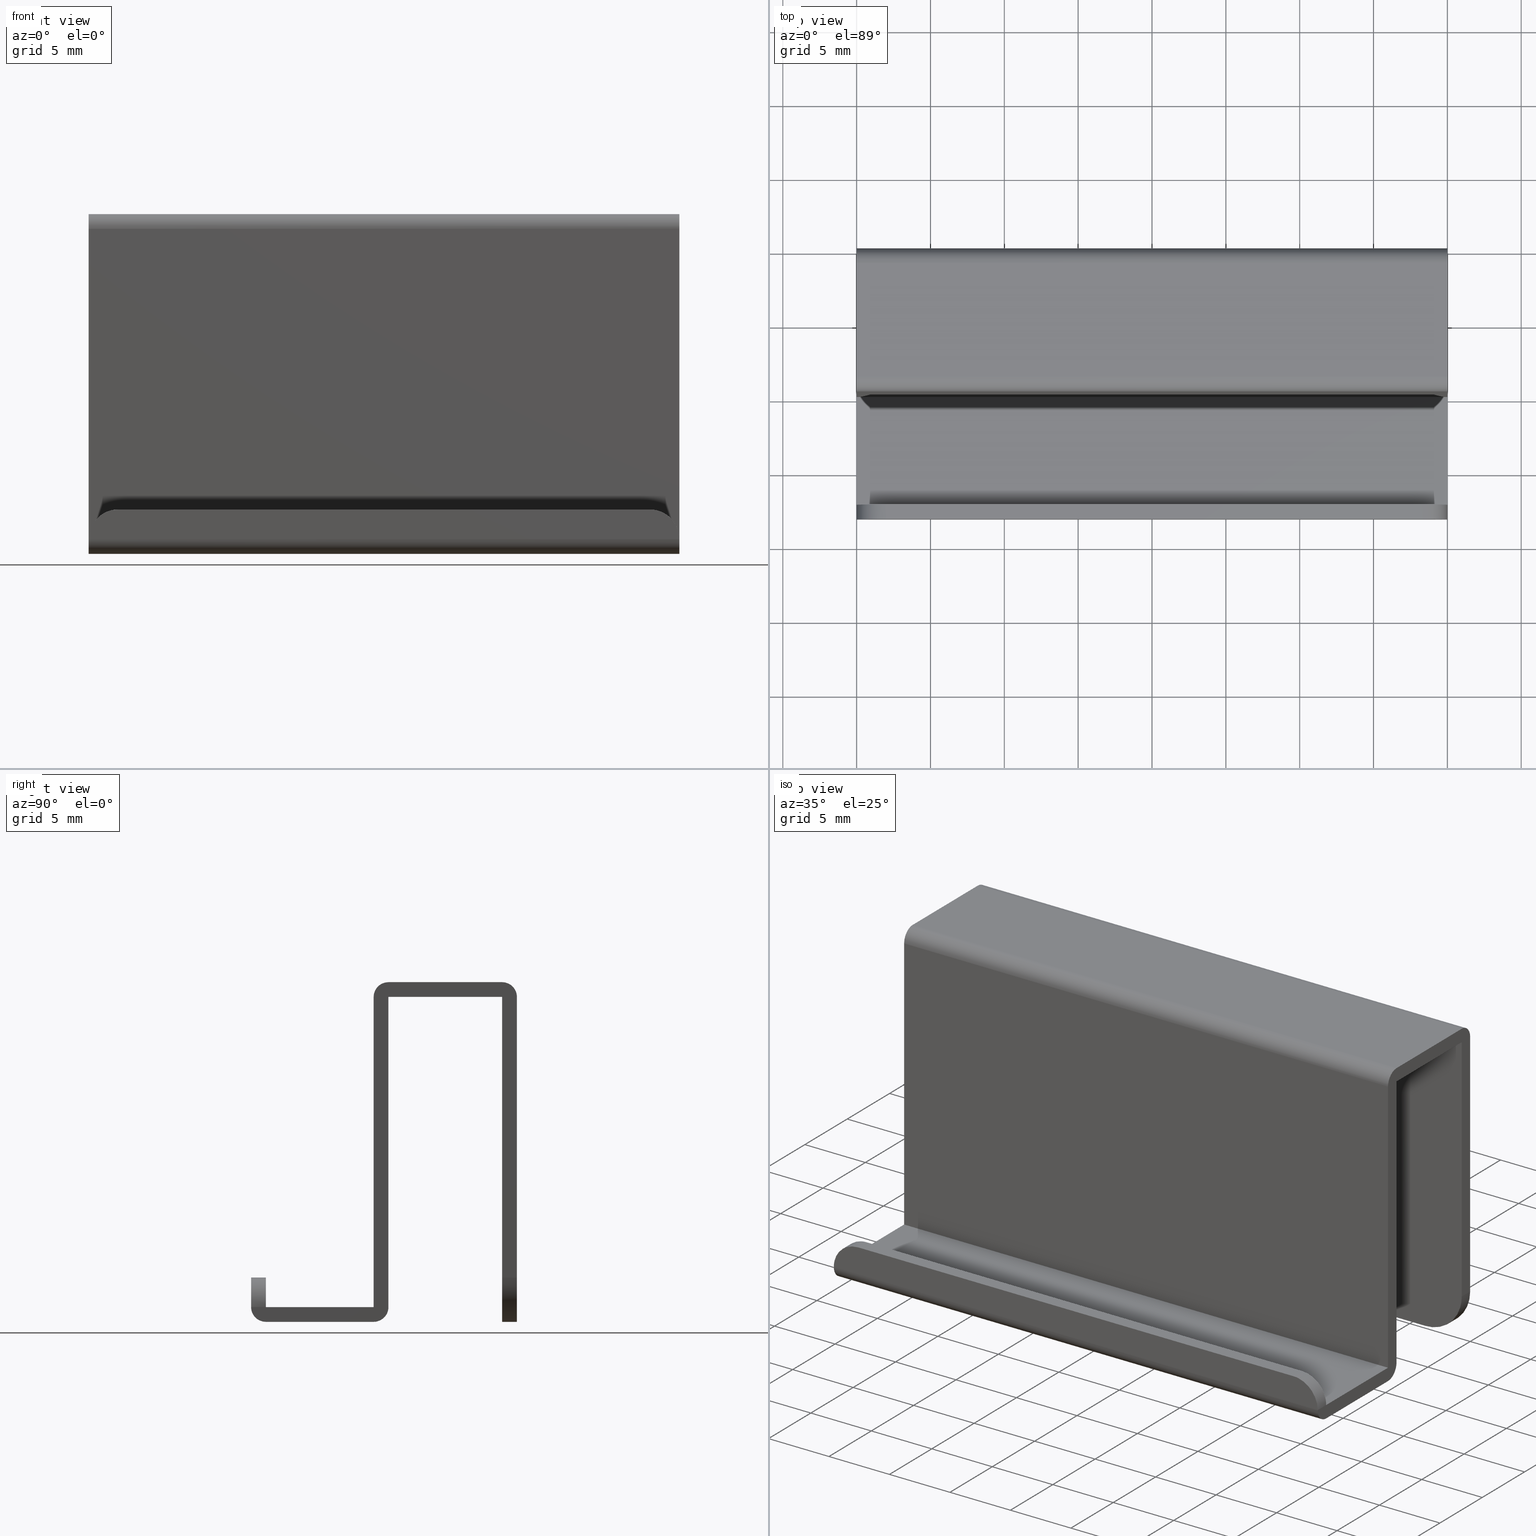
[diagram: canonical four-view strip — front | top / right | iso, engineering-drawing reading convention]
A machine part, canonical four-view strip (front | top / right | iso — engineering-drawing reading convention). The complete STEP part file that produces these views, byte-faithful:
ISO-10303-21;
HEADER;
/****************************************************************
 * Generated by software with PDE/Lib inside                    *
 * PDElib Version 4.4.1-0003, patched  Thursday August 19 11:58 *
 * International Technegroup Inc. (www.iti-oh.com)              *
 ****************************************************************/
FILE_DESCRIPTION((''),'2;1');
FILE_NAME('','2005-07-15T14:08:03',(''),(''),'','CADfix','');
FILE_SCHEMA(('AUTOMOTIVE_DESIGN'));
ENDSEC;
DATA;
#5=APPLICATION_CONTEXT('automotive design');
#6=APPLICATION_PROTOCOL_DEFINITION('Draft International Standard','automotive_design',1998,#5);
#7=PRODUCT_CONTEXT('None',#5,'mechanical');
#8=PRODUCT('keeper','','None',(#7));
#9=PRODUCT_RELATED_PRODUCT_CATEGORY('part','description',(#8));
#10=PRODUCT_DEFINITION_FORMATION('None','None',#8);
#11=PRODUCT_DEFINITION_CONTEXT('part definition',#5,'design');
#12=PRODUCT_DEFINITION('None','None',#10,#11);
#18=(NAMED_UNIT(*)PLANE_ANGLE_UNIT()SI_UNIT($,.RADIAN.));
#19=DIMENSIONAL_EXPONENTS(0.0,0.0,0.0,0.0,0.0,0.0,0.0);
#20=PLANE_ANGLE_MEASURE_WITH_UNIT(PLANE_ANGLE_MEASURE(0.017453292500000),#18);
#24=(CONVERSION_BASED_UNIT('DEGREE',#20)NAMED_UNIT(#19)PLANE_ANGLE_UNIT());
#28=(NAMED_UNIT(*)SI_UNIT($,.STERADIAN.)SOLID_ANGLE_UNIT());
#32=(LENGTH_UNIT()NAMED_UNIT(*)SI_UNIT(.MILLI.,.METRE.));
#34=UNCERTAINTY_MEASURE_WITH_UNIT(LENGTH_MEASURE(0.001000000000000),#32,'DISTANCE_ACCURACY_VALUE','');
#36=(GEOMETRIC_REPRESENTATION_CONTEXT(3)GLOBAL_UNCERTAINTY_ASSIGNED_CONTEXT((#34))GLOBAL_UNIT_ASSIGNED_CONTEXT((#24,#28,#32))REPRESENTATION_CONTEXT('None','None'));
#37=AXIS2_PLACEMENT_3D('',#38,#39,#40);
#38=CARTESIAN_POINT('',(0.0,0.0,0.0));
#39=DIRECTION('',(0.0,0.0,1.0));
#40=DIRECTION('',(1.0,0.0,0.0));
#41=ADVANCED_BREP_SHAPE_REPRESENTATION('',(#37,#829),#36);
#42=PRODUCT_DEFINITION_SHAPE('','',#12);
#43=SHAPE_DEFINITION_REPRESENTATION(#42,#41);
#44=CARTESIAN_POINT('',(17.947646103384251,-16.974999999999749,2.999314649951114));
#45=CARTESIAN_POINT('',(17.947646103384251,-18.025624999999760,2.999314649951114));
#46=CARTESIAN_POINT('',(20.129515177188242,-16.974999999999756,3.056448902391984));
#47=CARTESIAN_POINT('',(20.129515177188242,-18.025624999999753,3.056448902391984));
#48=CARTESIAN_POINT('',(19.996269596843739,-16.974999999999749,0.877902920930291));
#49=CARTESIAN_POINT('',(19.996269596843739,-18.025624999999760,0.877902920930291));
#57=(BOUNDED_SURFACE()B_SPLINE_SURFACE(1,2,((#44,#46,#48),(#45,#47,#49)),.UNSPECIFIED.,.F.,.F.,.U.)B_SPLINE_SURFACE_WITH_KNOTS((2,2),(3,3),(0.0,1.0),(0.0,3.520084247134669),.UNSPECIFIED.)GEOMETRIC_REPRESENTATION_ITEM()RATIONAL_B_SPLINE_SURFACE(((1.0,0.675590207615660,1.0),(1.0,0.675590207615660,1.0)))REPRESENTATION_ITEM('')SURFACE());
#58=CARTESIAN_POINT('',(20.0,-17.999999999999751,1.0));
#59=VERTEX_POINT('',#58);
#60=CARTESIAN_POINT('',(18.0,-17.999999999999751,3.0));
#61=VERTEX_POINT('',#60);
#62=CARTESIAN_POINT('',(20.0,-17.999999999999751,1.0));
#63=CARTESIAN_POINT('',(19.999999999999996,-17.999999999999751,3.0));
#64=CARTESIAN_POINT('',(18.0,-17.999999999999751,3.0));
#72=(BOUNDED_CURVE()B_SPLINE_CURVE(2,(#62,#63,#64),.UNSPECIFIED.,.F.,.U.)CURVE()GEOMETRIC_REPRESENTATION_ITEM()QUASI_UNIFORM_CURVE()RATIONAL_B_SPLINE_CURVE((1.0,0.707106781186548,1.0))REPRESENTATION_ITEM(''));
#73=EDGE_CURVE('',#59,#61,#72,.T.);
#74=ORIENTED_EDGE('',*,*,#73,.F.);
#75=CARTESIAN_POINT('',(20.0,-16.999999999999751,1.0));
#76=VERTEX_POINT('',#75);
#77=CARTESIAN_POINT('',(20.0,-16.999999999999751,1.0));
#78=CARTESIAN_POINT('',(20.0,-17.999999999999751,1.0));
#79=QUASI_UNIFORM_CURVE('',1,(#77,#78),.UNSPECIFIED.,.F.,.U.);
#80=EDGE_CURVE('',#76,#59,#79,.T.);
#81=ORIENTED_EDGE('',*,*,#80,.F.);
#82=CARTESIAN_POINT('',(18.0,-16.999999999999751,3.0));
#83=VERTEX_POINT('',#82);
#84=CARTESIAN_POINT('',(18.0,-16.999999999999751,3.0));
#85=CARTESIAN_POINT('',(19.999999999999996,-16.999999999999748,3.0));
#86=CARTESIAN_POINT('',(20.0,-16.999999999999751,1.0));
#94=(BOUNDED_CURVE()B_SPLINE_CURVE(2,(#84,#85,#86),.UNSPECIFIED.,.F.,.U.)CURVE()GEOMETRIC_REPRESENTATION_ITEM()QUASI_UNIFORM_CURVE()RATIONAL_B_SPLINE_CURVE((1.0,0.707106781186548,1.0))REPRESENTATION_ITEM(''));
#95=EDGE_CURVE('',#83,#76,#94,.T.);
#96=ORIENTED_EDGE('',*,*,#95,.F.);
#97=CARTESIAN_POINT('',(18.0,-17.999999999999751,3.0));
#98=CARTESIAN_POINT('',(18.0,-16.999999999999751,3.0));
#99=QUASI_UNIFORM_CURVE('',1,(#97,#98),.UNSPECIFIED.,.F.,.U.);
#100=EDGE_CURVE('',#61,#83,#99,.T.);
#101=ORIENTED_EDGE('',*,*,#100,.F.);
#102=EDGE_LOOP('',(#74,#81,#96,#101));
#103=FACE_OUTER_BOUND('',#102,.T.);
#104=ADVANCED_FACE('',(#103),#57,.T.);
#105=CARTESIAN_POINT('',(-17.947646103384251,-18.024999999999750,2.999314649951114));
#106=CARTESIAN_POINT('',(-17.947646103384251,-16.974374999999750,2.999314649951114));
#107=CARTESIAN_POINT('',(-20.129515177188242,-18.024999999999753,3.056448902391984));
#108=CARTESIAN_POINT('',(-20.129515177188242,-16.974374999999757,3.056448902391984));
#109=CARTESIAN_POINT('',(-19.996269596843739,-18.024999999999750,0.877902920930291));
#110=CARTESIAN_POINT('',(-19.996269596843739,-16.974374999999750,0.877902920930291));
#118=(BOUNDED_SURFACE()B_SPLINE_SURFACE(1,2,((#105,#107,#109),(#106,#108,#110)),.UNSPECIFIED.,.F.,.F.,.U.)B_SPLINE_SURFACE_WITH_KNOTS((2,2),(3,3),(0.0,1.0),(0.0,3.520084247134669),.UNSPECIFIED.)GEOMETRIC_REPRESENTATION_ITEM()RATIONAL_B_SPLINE_SURFACE(((1.0,0.675590207615660,1.0),(1.0,0.675590207615660,1.0)))REPRESENTATION_ITEM('')SURFACE());
#119=CARTESIAN_POINT('',(-18.0,-17.999999999999751,3.0));
#120=VERTEX_POINT('',#119);
#121=CARTESIAN_POINT('',(-20.0,-17.999999999999751,1.0));
#122=VERTEX_POINT('',#121);
#123=CARTESIAN_POINT('',(-18.0,-17.999999999999751,3.0));
#124=CARTESIAN_POINT('',(-19.999999999999996,-17.999999999999751,3.0));
#125=CARTESIAN_POINT('',(-20.0,-17.999999999999751,1.0));
#133=(BOUNDED_CURVE()B_SPLINE_CURVE(2,(#123,#124,#125),.UNSPECIFIED.,.F.,.U.)CURVE()GEOMETRIC_REPRESENTATION_ITEM()QUASI_UNIFORM_CURVE()RATIONAL_B_SPLINE_CURVE((1.0,0.707106781186548,1.0))REPRESENTATION_ITEM(''));
#134=EDGE_CURVE('',#120,#122,#133,.T.);
#135=ORIENTED_EDGE('',*,*,#134,.F.);
#136=CARTESIAN_POINT('',(-18.0,-16.999999999999751,3.0));
#137=VERTEX_POINT('',#136);
#138=CARTESIAN_POINT('',(-18.0,-16.999999999999751,3.0));
#139=CARTESIAN_POINT('',(-18.0,-17.999999999999751,3.0));
#140=QUASI_UNIFORM_CURVE('',1,(#138,#139),.UNSPECIFIED.,.F.,.U.);
#141=EDGE_CURVE('',#137,#120,#140,.T.);
#142=ORIENTED_EDGE('',*,*,#141,.F.);
#143=CARTESIAN_POINT('',(-20.0,-16.999999999999751,1.0));
#144=VERTEX_POINT('',#143);
#145=CARTESIAN_POINT('',(-20.0,-16.999999999999751,1.0));
#146=CARTESIAN_POINT('',(-19.999999999999996,-16.999999999999748,3.0));
#147=CARTESIAN_POINT('',(-18.0,-16.999999999999751,3.0));
#155=(BOUNDED_CURVE()B_SPLINE_CURVE(2,(#145,#146,#147),.UNSPECIFIED.,.F.,.U.)CURVE()GEOMETRIC_REPRESENTATION_ITEM()QUASI_UNIFORM_CURVE()RATIONAL_B_SPLINE_CURVE((1.0,0.707106781186548,1.0))REPRESENTATION_ITEM(''));
#156=EDGE_CURVE('',#144,#137,#155,.T.);
#157=ORIENTED_EDGE('',*,*,#156,.F.);
#158=CARTESIAN_POINT('',(-20.0,-17.999999999999751,1.0));
#159=CARTESIAN_POINT('',(-20.0,-16.999999999999751,1.0));
#160=QUASI_UNIFORM_CURVE('',1,(#158,#159),.UNSPECIFIED.,.F.,.U.);
#161=EDGE_CURVE('',#122,#144,#160,.T.);
#162=ORIENTED_EDGE('',*,*,#161,.F.);
#163=EDGE_LOOP('',(#135,#142,#157,#162));
#164=FACE_OUTER_BOUND('',#163,.T.);
#165=ADVANCED_FACE('',(#164),#118,.T.);
#166=CARTESIAN_POINT('',(21.0,-0.000342675024443,21.973823051692129));
#167=CARTESIAN_POINT('',(-21.024999999999999,-0.000342675024443,21.973823051692129));
#168=CARTESIAN_POINT('',(21.000000000000007,0.028492260166263,23.074984800554716));
#169=CARTESIAN_POINT('',(-21.025000000000009,0.028492260166263,23.074984800554716));
#170=CARTESIAN_POINT('',(21.000000000000004,-1.070320075625979,22.997524479380804));
#171=CARTESIAN_POINT('',(-21.024999999999999,-1.070320075625979,22.997524479380804));
#179=(BOUNDED_SURFACE()B_SPLINE_SURFACE(1,2,((#166,#168,#170),(#167,#169,#171)),.UNSPECIFIED.,.F.,.F.,.U.)B_SPLINE_SURFACE_WITH_KNOTS((2,2),(3,3),(0.0,42.025000000000013),(0.0,0.994518632334191),.UNSPECIFIED.)GEOMETRIC_REPRESENTATION_ITEM()RATIONAL_B_SPLINE_SURFACE(((1.0,0.670944223154768,0.996392648609106),(1.0,0.670944223154768,0.996392648609106)))REPRESENTATION_ITEM('')SURFACE());
#180=CARTESIAN_POINT('',(20.0,0.0,22.0));
#181=VERTEX_POINT('',#180);
#182=CARTESIAN_POINT('',(20.0,-1.0,23.0));
#183=VERTEX_POINT('',#182);
#184=CARTESIAN_POINT('',(20.0,0.0,22.0));
#185=CARTESIAN_POINT('',(19.999999999999996,0.0,22.999999999999993));
#186=CARTESIAN_POINT('',(20.0,-1.0,23.0));
#194=(BOUNDED_CURVE()B_SPLINE_CURVE(2,(#184,#185,#186),.UNSPECIFIED.,.F.,.U.)CURVE()GEOMETRIC_REPRESENTATION_ITEM()QUASI_UNIFORM_CURVE()RATIONAL_B_SPLINE_CURVE((1.0,0.707106781186548,1.0))REPRESENTATION_ITEM(''));
#195=EDGE_CURVE('',#181,#183,#194,.T.);
#196=ORIENTED_EDGE('',*,*,#195,.F.);
#197=CARTESIAN_POINT('',(-20.0,0.0,22.0));
#198=VERTEX_POINT('',#197);
#199=CARTESIAN_POINT('',(-20.0,0.0,22.0));
#200=CARTESIAN_POINT('',(20.0,0.0,22.0));
#201=QUASI_UNIFORM_CURVE('',1,(#199,#200),.UNSPECIFIED.,.F.,.U.);
#202=EDGE_CURVE('',#198,#181,#201,.T.);
#203=ORIENTED_EDGE('',*,*,#202,.F.);
#204=CARTESIAN_POINT('',(-20.0,-1.0,23.0));
#205=VERTEX_POINT('',#204);
#206=CARTESIAN_POINT('',(-20.0,-1.0,23.0));
#207=CARTESIAN_POINT('',(-19.999999999999996,0.0,22.999999999999993));
#208=CARTESIAN_POINT('',(-20.0,0.0,22.0));
#216=(BOUNDED_CURVE()B_SPLINE_CURVE(2,(#206,#207,#208),.UNSPECIFIED.,.F.,.U.)CURVE()GEOMETRIC_REPRESENTATION_ITEM()QUASI_UNIFORM_CURVE()RATIONAL_B_SPLINE_CURVE((1.0,0.707106781186548,1.0))REPRESENTATION_ITEM(''));
#217=EDGE_CURVE('',#205,#198,#216,.T.);
#218=ORIENTED_EDGE('',*,*,#217,.F.);
#219=CARTESIAN_POINT('',(20.0,-1.0,23.0));
#220=CARTESIAN_POINT('',(-20.0,-1.0,23.0));
#221=QUASI_UNIFORM_CURVE('',1,(#219,#220),.UNSPECIFIED.,.F.,.U.);
#222=EDGE_CURVE('',#183,#205,#221,.T.);
#223=ORIENTED_EDGE('',*,*,#222,.F.);
#224=EDGE_LOOP('',(#196,#203,#218,#223));
#225=FACE_OUTER_BOUND('',#224,.T.);
#226=ADVANCED_FACE('',(#225),#179,.T.);
#227=CARTESIAN_POINT('',(21.0,-8.673835051691915,22.999657324975558));
#228=CARTESIAN_POINT('',(-21.024999999999999,-8.673835051691915,22.999657324975558));
#229=CARTESIAN_POINT('',(21.000000000000004,-9.774996789346199,23.028492259872760));
#230=CARTESIAN_POINT('',(-21.025000000000002,-9.774996789346199,23.028492259872760));
#231=CARTESIAN_POINT('',(21.000000000000007,-9.697536480093030,21.929679934480149));
#232=CARTESIAN_POINT('',(-21.025000000000006,-9.697536480093030,21.929679934480149));
#240=(BOUNDED_SURFACE()B_SPLINE_SURFACE(1,2,((#227,#229,#231),(#228,#230,#232)),.UNSPECIFIED.,.F.,.F.,.U.)B_SPLINE_SURFACE_WITH_KNOTS((2,2),(3,3),(0.0,42.025000000000013),(0.0,0.994518625542335),.UNSPECIFIED.)GEOMETRIC_REPRESENTATION_ITEM()RATIONAL_B_SPLINE_SURFACE(((1.0,0.670944225401986,0.996392644163943),(1.0,0.670944225401986,0.996392644163943)))REPRESENTATION_ITEM('')SURFACE());
#241=CARTESIAN_POINT('',(20.0,-8.700011999999788,23.0));
#242=VERTEX_POINT('',#241);
#243=CARTESIAN_POINT('',(20.0,-9.700011999999790,22.0));
#244=VERTEX_POINT('',#243);
#245=CARTESIAN_POINT('',(20.0,-8.700011999999788,23.0));
#246=CARTESIAN_POINT('',(19.999999999999996,-9.700011999999790,22.999999999999993));
#247=CARTESIAN_POINT('',(20.0,-9.700011999999790,22.0));
#255=(BOUNDED_CURVE()B_SPLINE_CURVE(2,(#245,#246,#247),.UNSPECIFIED.,.F.,.U.)CURVE()GEOMETRIC_REPRESENTATION_ITEM()QUASI_UNIFORM_CURVE()RATIONAL_B_SPLINE_CURVE((1.0,0.707106781186548,1.0))REPRESENTATION_ITEM(''));
#256=EDGE_CURVE('',#242,#244,#255,.T.);
#257=ORIENTED_EDGE('',*,*,#256,.F.);
#258=CARTESIAN_POINT('',(-20.0,-8.700011999999788,23.0));
#259=VERTEX_POINT('',#258);
#260=CARTESIAN_POINT('',(-20.0,-8.700011999999788,23.0));
#261=CARTESIAN_POINT('',(20.0,-8.700011999999788,23.0));
#262=QUASI_UNIFORM_CURVE('',1,(#260,#261),.UNSPECIFIED.,.F.,.U.);
#263=EDGE_CURVE('',#259,#242,#262,.T.);
#264=ORIENTED_EDGE('',*,*,#263,.F.);
#265=CARTESIAN_POINT('',(-20.0,-9.700011999999790,22.0));
#266=VERTEX_POINT('',#265);
#267=CARTESIAN_POINT('',(-20.0,-9.700011999999790,22.0));
#268=CARTESIAN_POINT('',(-19.999999999999996,-9.700011999999790,22.999999999999993));
#269=CARTESIAN_POINT('',(-20.0,-8.700011999999788,23.0));
#277=(BOUNDED_CURVE()B_SPLINE_CURVE(2,(#267,#268,#269),.UNSPECIFIED.,.F.,.U.)CURVE()GEOMETRIC_REPRESENTATION_ITEM()QUASI_UNIFORM_CURVE()RATIONAL_B_SPLINE_CURVE((1.0,0.707106781186548,1.0))REPRESENTATION_ITEM(''));
#278=EDGE_CURVE('',#266,#259,#277,.T.);
#279=ORIENTED_EDGE('',*,*,#278,.F.);
#280=CARTESIAN_POINT('',(20.0,-9.700011999999790,22.0));
#281=CARTESIAN_POINT('',(-20.0,-9.700011999999790,22.0));
#282=QUASI_UNIFORM_CURVE('',1,(#280,#281),.UNSPECIFIED.,.F.,.U.);
#283=EDGE_CURVE('',#244,#266,#282,.T.);
#284=ORIENTED_EDGE('',*,*,#283,.F.);
#285=EDGE_LOOP('',(#257,#264,#279,#284));
#286=FACE_OUTER_BOUND('',#285,.T.);
#287=ADVANCED_FACE('',(#286),#240,.T.);
#288=CARTESIAN_POINT('',(21.0,-17.999657324975310,1.026176948307874));
#289=CARTESIAN_POINT('',(-21.024999999999999,-17.999657324975310,1.026176948307874));
#290=CARTESIAN_POINT('',(21.000000000000007,-18.028492260166015,-0.074984800554721));
#291=CARTESIAN_POINT('',(-21.025000000000009,-18.028492260166015,-0.074984800554721));
#292=CARTESIAN_POINT('',(21.000000000000004,-16.929679924373769,0.002475520619190));
#293=CARTESIAN_POINT('',(-21.024999999999999,-16.929679924373769,0.002475520619190));
#301=(BOUNDED_SURFACE()B_SPLINE_SURFACE(1,2,((#288,#290,#292),(#289,#291,#293)),.UNSPECIFIED.,.F.,.F.,.U.)B_SPLINE_SURFACE_WITH_KNOTS((2,2),(3,3),(0.0,42.025000000000013),(0.0,0.994518632334191),.UNSPECIFIED.)GEOMETRIC_REPRESENTATION_ITEM()RATIONAL_B_SPLINE_SURFACE(((1.0,0.670944223154768,0.996392648609106),(1.0,0.670944223154768,0.996392648609106)))REPRESENTATION_ITEM('')SURFACE());
#302=CARTESIAN_POINT('',(20.0,-16.999999999999751,0.0));
#303=VERTEX_POINT('',#302);
#304=CARTESIAN_POINT('',(20.0,-17.999999999999751,1.0));
#305=CARTESIAN_POINT('',(19.999999999999996,-17.999999999999751,0.0));
#306=CARTESIAN_POINT('',(20.0,-16.999999999999751,0.0));
#314=(BOUNDED_CURVE()B_SPLINE_CURVE(2,(#304,#305,#306),.UNSPECIFIED.,.F.,.U.)CURVE()GEOMETRIC_REPRESENTATION_ITEM()QUASI_UNIFORM_CURVE()RATIONAL_B_SPLINE_CURVE((1.0,0.707106781186548,1.0))REPRESENTATION_ITEM(''));
#315=EDGE_CURVE('',#59,#303,#314,.T.);
#316=ORIENTED_EDGE('',*,*,#315,.F.);
#317=CARTESIAN_POINT('',(-20.0,-17.999999999999751,1.0));
#318=CARTESIAN_POINT('',(20.0,-17.999999999999751,1.0));
#319=QUASI_UNIFORM_CURVE('',1,(#317,#318),.UNSPECIFIED.,.F.,.U.);
#320=EDGE_CURVE('',#122,#59,#319,.T.);
#321=ORIENTED_EDGE('',*,*,#320,.F.);
#322=CARTESIAN_POINT('',(-20.0,-16.999999999999751,0.0));
#323=VERTEX_POINT('',#322);
#324=CARTESIAN_POINT('',(-20.0,-16.999999999999751,0.0));
#325=CARTESIAN_POINT('',(-19.999999999999996,-17.999999999999751,0.0));
#326=CARTESIAN_POINT('',(-20.0,-17.999999999999751,1.0));
#334=(BOUNDED_CURVE()B_SPLINE_CURVE(2,(#324,#325,#326),.UNSPECIFIED.,.F.,.U.)CURVE()GEOMETRIC_REPRESENTATION_ITEM()QUASI_UNIFORM_CURVE()RATIONAL_B_SPLINE_CURVE((1.0,0.707106781186548,1.0))REPRESENTATION_ITEM(''));
#335=EDGE_CURVE('',#323,#122,#334,.T.);
#336=ORIENTED_EDGE('',*,*,#335,.F.);
#337=CARTESIAN_POINT('',(20.0,-16.999999999999751,0.0));
#338=CARTESIAN_POINT('',(-20.0,-16.999999999999751,0.0));
#339=QUASI_UNIFORM_CURVE('',1,(#337,#338),.UNSPECIFIED.,.F.,.U.);
#340=EDGE_CURVE('',#303,#323,#339,.T.);
#341=ORIENTED_EDGE('',*,*,#340,.F.);
#342=EDGE_LOOP('',(#316,#321,#336,#341));
#343=FACE_OUTER_BOUND('',#342,.T.);
#344=ADVANCED_FACE('',(#343),#301,.T.);
#345=CARTESIAN_POINT('',(21.0,-9.743631387365335,0.000951778418143));
#346=CARTESIAN_POINT('',(-21.024999999999999,-9.743631387365335,0.000951778418143));
#347=CARTESIAN_POINT('',(21.000000000000004,-8.623951724032352,-0.047934491438461));
#348=CARTESIAN_POINT('',(-21.025000000000002,-8.623951724032352,-0.047934491438461));
#349=CARTESIAN_POINT('',(21.0,-8.702469087483518,1.070058102230493));
#350=CARTESIAN_POINT('',(-21.024999999999999,-8.702469087483518,1.070058102230493));
#358=(BOUNDED_SURFACE()B_SPLINE_SURFACE(1,2,((#345,#347,#349),(#346,#348,#350)),.UNSPECIFIED.,.F.,.F.,.U.)B_SPLINE_SURFACE_WITH_KNOTS((2,2),(3,3),(0.0,42.025000000000013),(0.0,0.994386601758841),.UNSPECIFIED.)GEOMETRIC_REPRESENTATION_ITEM()RATIONAL_B_SPLINE_SURFACE(((1.0,0.664513896243686,0.996233565790482),(1.0,0.664513896243686,0.996233565790482)))REPRESENTATION_ITEM('')SURFACE());
#359=CARTESIAN_POINT('',(20.0,-9.700011999999999,0.0));
#360=VERTEX_POINT('',#359);
#361=CARTESIAN_POINT('',(20.0,-8.700011999999999,1.0));
#362=VERTEX_POINT('',#361);
#363=CARTESIAN_POINT('',(20.0,-9.700011999999999,0.0));
#364=CARTESIAN_POINT('',(19.999999999999996,-8.700011999999999,0.0));
#365=CARTESIAN_POINT('',(20.0,-8.700011999999999,1.0));
#373=(BOUNDED_CURVE()B_SPLINE_CURVE(2,(#363,#364,#365),.UNSPECIFIED.,.F.,.U.)CURVE()GEOMETRIC_REPRESENTATION_ITEM()QUASI_UNIFORM_CURVE()RATIONAL_B_SPLINE_CURVE((1.0,0.707106781186548,1.0))REPRESENTATION_ITEM(''));
#374=EDGE_CURVE('',#360,#362,#373,.T.);
#375=ORIENTED_EDGE('',*,*,#374,.F.);
#376=CARTESIAN_POINT('',(-20.0,-9.700011999999999,0.0));
#377=VERTEX_POINT('',#376);
#378=CARTESIAN_POINT('',(-20.0,-9.700011999999999,0.0));
#379=CARTESIAN_POINT('',(20.0,-9.700011999999999,0.0));
#380=QUASI_UNIFORM_CURVE('',1,(#378,#379),.UNSPECIFIED.,.F.,.U.);
#381=EDGE_CURVE('',#377,#360,#380,.T.);
#382=ORIENTED_EDGE('',*,*,#381,.F.);
#383=CARTESIAN_POINT('',(-20.0,-8.700011999999999,1.0));
#384=VERTEX_POINT('',#383);
#385=CARTESIAN_POINT('',(-20.0,-8.700011999999999,1.0));
#386=CARTESIAN_POINT('',(-19.999999999999996,-8.700011999999999,0.0));
#387=CARTESIAN_POINT('',(-20.0,-9.700011999999999,0.0));
#395=(BOUNDED_CURVE()B_SPLINE_CURVE(2,(#385,#386,#387),.UNSPECIFIED.,.F.,.U.)CURVE()GEOMETRIC_REPRESENTATION_ITEM()QUASI_UNIFORM_CURVE()RATIONAL_B_SPLINE_CURVE((1.0,0.707106781186548,1.0))REPRESENTATION_ITEM(''));
#396=EDGE_CURVE('',#384,#377,#395,.T.);
#397=ORIENTED_EDGE('',*,*,#396,.F.);
#398=CARTESIAN_POINT('',(20.0,-8.700011999999999,1.0));
#399=CARTESIAN_POINT('',(-20.0,-8.700011999999999,1.0));
#400=QUASI_UNIFORM_CURVE('',1,(#398,#399),.UNSPECIFIED.,.F.,.U.);
#401=EDGE_CURVE('',#362,#384,#400,.T.);
#402=ORIENTED_EDGE('',*,*,#401,.F.);
#403=EDGE_LOOP('',(#375,#382,#397,#402));
#404=FACE_OUTER_BOUND('',#403,.T.);
#405=ADVANCED_FACE('',(#404),#358,.T.);
#406=CARTESIAN_POINT('',(16.921469155076380,-1.025000000000000,0.001028025073329));
#407=CARTESIAN_POINT('',(16.921469155076380,0.025625000000000,0.001028025073329));
#408=CARTESIAN_POINT('',(20.224954401664156,-1.025000000000000,-0.085476780498783));
#409=CARTESIAN_POINT('',(20.224954401664156,0.025625000000000,-0.085476780498783));
#410=CARTESIAN_POINT('',(19.992573438142433,-1.025000000000001,3.210960226877958));
#411=CARTESIAN_POINT('',(19.992573438142433,0.025625000000000,3.210960226877958));
#419=(BOUNDED_SURFACE()B_SPLINE_SURFACE(1,2,((#406,#408,#410),(#407,#409,#411)),.UNSPECIFIED.,.F.,.F.,.U.)B_SPLINE_SURFACE_WITH_KNOTS((2,2),(3,3),(0.0,1.0),(0.0,5.313427032265101),.UNSPECIFIED.)GEOMETRIC_REPRESENTATION_ITEM()RATIONAL_B_SPLINE_SURFACE(((1.0,0.670944223154768,0.996392648609106),(1.0,0.670944223154768,0.996392648609106)))REPRESENTATION_ITEM('')SURFACE());
#420=CARTESIAN_POINT('',(20.0,0.0,3.0));
#421=VERTEX_POINT('',#420);
#422=CARTESIAN_POINT('',(17.0,0.0,0.0));
#423=VERTEX_POINT('',#422);
#424=CARTESIAN_POINT('',(20.0,0.0,3.0));
#425=CARTESIAN_POINT('',(19.999999999999996,0.0,0.0));
#426=CARTESIAN_POINT('',(17.0,0.0,0.0));
#434=(BOUNDED_CURVE()B_SPLINE_CURVE(2,(#424,#425,#426),.UNSPECIFIED.,.F.,.U.)CURVE()GEOMETRIC_REPRESENTATION_ITEM()QUASI_UNIFORM_CURVE()RATIONAL_B_SPLINE_CURVE((1.0,0.707106781186548,1.0))REPRESENTATION_ITEM(''));
#435=EDGE_CURVE('',#421,#423,#434,.T.);
#436=ORIENTED_EDGE('',*,*,#435,.F.);
#437=CARTESIAN_POINT('',(20.0,-1.0,3.0));
#438=VERTEX_POINT('',#437);
#439=CARTESIAN_POINT('',(20.0,-1.0,3.0));
#440=CARTESIAN_POINT('',(20.0,0.0,3.0));
#441=QUASI_UNIFORM_CURVE('',1,(#439,#440),.UNSPECIFIED.,.F.,.U.);
#442=EDGE_CURVE('',#438,#421,#441,.T.);
#443=ORIENTED_EDGE('',*,*,#442,.F.);
#444=CARTESIAN_POINT('',(17.0,-1.0,0.0));
#445=VERTEX_POINT('',#444);
#446=CARTESIAN_POINT('',(17.0,-1.0,0.0));
#447=CARTESIAN_POINT('',(19.999999999999996,-1.0,0.0));
#448=CARTESIAN_POINT('',(20.0,-1.0,3.0));
#456=(BOUNDED_CURVE()B_SPLINE_CURVE(2,(#446,#447,#448),.UNSPECIFIED.,.F.,.U.)CURVE()GEOMETRIC_REPRESENTATION_ITEM()QUASI_UNIFORM_CURVE()RATIONAL_B_SPLINE_CURVE((1.0,0.707106781186548,1.0))REPRESENTATION_ITEM(''));
#457=EDGE_CURVE('',#445,#438,#456,.T.);
#458=ORIENTED_EDGE('',*,*,#457,.F.);
#459=CARTESIAN_POINT('',(17.0,0.0,0.0));
#460=CARTESIAN_POINT('',(17.0,-1.0,0.0));
#461=QUASI_UNIFORM_CURVE('',1,(#459,#460),.UNSPECIFIED.,.F.,.U.);
#462=EDGE_CURVE('',#423,#445,#461,.T.);
#463=ORIENTED_EDGE('',*,*,#462,.F.);
#464=EDGE_LOOP('',(#436,#443,#458,#463));
#465=FACE_OUTER_BOUND('',#464,.T.);
#466=ADVANCED_FACE('',(#465),#419,.T.);
#467=CARTESIAN_POINT('',(-16.973820393504880,0.025000000000000,0.000114230807487));
#468=CARTESIAN_POINT('',(-16.973820393504880,-1.025625000000000,0.000114230807487));
#469=CARTESIAN_POINT('',(-20.190804026035252,0.025000000000000,-0.027959960038636));
#470=CARTESIAN_POINT('',(-20.190804026035252,-1.025625000000000,-0.027959960038636));
#471=CARTESIAN_POINT('',(-19.994404395265601,0.025000000000000,3.183145618604572));
#472=CARTESIAN_POINT('',(-19.994404395265601,-1.025625000000000,3.183145618604572));
#480=(BOUNDED_SURFACE()B_SPLINE_SURFACE(1,2,((#467,#469,#471),(#468,#470,#472)),.UNSPECIFIED.,.F.,.F.,.U.)B_SPLINE_SURFACE_WITH_KNOTS((2,2),(3,3),(0.0,1.0),(0.0,5.217748499531195),.UNSPECIFIED.)GEOMETRIC_REPRESENTATION_ITEM()RATIONAL_B_SPLINE_SURFACE(((1.0,0.681998360062499,1.0),(1.0,0.681998360062499,1.0)))REPRESENTATION_ITEM('')SURFACE());
#481=CARTESIAN_POINT('',(-17.0,0.0,0.0));
#482=VERTEX_POINT('',#481);
#483=CARTESIAN_POINT('',(-20.0,0.0,3.0));
#484=VERTEX_POINT('',#483);
#485=CARTESIAN_POINT('',(-17.0,0.0,0.0));
#486=CARTESIAN_POINT('',(-19.999999999999996,0.0,0.0));
#487=CARTESIAN_POINT('',(-20.0,0.0,3.0));
#495=(BOUNDED_CURVE()B_SPLINE_CURVE(2,(#485,#486,#487),.UNSPECIFIED.,.F.,.U.)CURVE()GEOMETRIC_REPRESENTATION_ITEM()QUASI_UNIFORM_CURVE()RATIONAL_B_SPLINE_CURVE((1.0,0.707106781186548,1.0))REPRESENTATION_ITEM(''));
#496=EDGE_CURVE('',#482,#484,#495,.T.);
#497=ORIENTED_EDGE('',*,*,#496,.F.);
#498=CARTESIAN_POINT('',(-17.0,-1.0,0.0));
#499=VERTEX_POINT('',#498);
#500=CARTESIAN_POINT('',(-17.0,-1.0,0.0));
#501=CARTESIAN_POINT('',(-17.0,0.0,0.0));
#502=QUASI_UNIFORM_CURVE('',1,(#500,#501),.UNSPECIFIED.,.F.,.U.);
#503=EDGE_CURVE('',#499,#482,#502,.T.);
#504=ORIENTED_EDGE('',*,*,#503,.F.);
#505=CARTESIAN_POINT('',(-20.0,-1.0,3.0));
#506=VERTEX_POINT('',#505);
#507=CARTESIAN_POINT('',(-20.0,-1.0,3.0));
#508=CARTESIAN_POINT('',(-19.999999999999996,-1.0,0.0));
#509=CARTESIAN_POINT('',(-17.0,-1.0,0.0));
#517=(BOUNDED_CURVE()B_SPLINE_CURVE(2,(#507,#508,#509),.UNSPECIFIED.,.F.,.U.)CURVE()GEOMETRIC_REPRESENTATION_ITEM()QUASI_UNIFORM_CURVE()RATIONAL_B_SPLINE_CURVE((1.0,0.707106781186548,1.0))REPRESENTATION_ITEM(''));
#518=EDGE_CURVE('',#506,#499,#517,.T.);
#519=ORIENTED_EDGE('',*,*,#518,.F.);
#520=CARTESIAN_POINT('',(-20.0,0.0,3.0));
#521=CARTESIAN_POINT('',(-20.0,-1.0,3.0));
#522=QUASI_UNIFORM_CURVE('',1,(#520,#521),.UNSPECIFIED.,.F.,.U.);
#523=EDGE_CURVE('',#484,#506,#522,.T.);
#524=ORIENTED_EDGE('',*,*,#523,.F.);
#525=EDGE_LOOP('',(#497,#504,#519,#524));
#526=FACE_OUTER_BOUND('',#525,.T.);
#527=ADVANCED_FACE('',(#526),#480,.T.);
#528=CARTESIAN_POINT('',(-20.0,-18.899099965112249,24.148849955421539));
#529=CARTESIAN_POINT('',(-20.0,0.899100447910116,24.148849955421539));
#530=CARTESIAN_POINT('',(-20.0,-18.899099965112249,-1.148850572329609));
#531=CARTESIAN_POINT('',(-20.0,0.899100447910116,-1.148850572329609));
#532=B_SPLINE_SURFACE_WITH_KNOTS('',1,1,((#528,#530),(#529,#531)),.UNSPECIFIED.,.F.,.F.,.U.,(2,2),(2,2),(0.0,19.798200413022361),(0.0,25.297700527751150),.UNSPECIFIED.);
#533=ORIENTED_EDGE('',*,*,#335,.T.);
#534=ORIENTED_EDGE('',*,*,#161,.T.);
#535=CARTESIAN_POINT('',(-20.0,-9.700011999999790,1.0));
#536=VERTEX_POINT('',#535);
#537=CARTESIAN_POINT('',(-20.0,-16.999999999999751,1.0));
#538=CARTESIAN_POINT('',(-20.0,-9.700011999999790,1.0));
#539=QUASI_UNIFORM_CURVE('',1,(#537,#538),.UNSPECIFIED.,.F.,.U.);
#540=EDGE_CURVE('',#144,#536,#539,.T.);
#541=ORIENTED_EDGE('',*,*,#540,.T.);
#542=CARTESIAN_POINT('',(-20.0,-9.700011999999790,1.0));
#543=CARTESIAN_POINT('',(-20.0,-9.700011999999790,22.0));
#544=QUASI_UNIFORM_CURVE('',1,(#542,#543),.UNSPECIFIED.,.F.,.U.);
#545=EDGE_CURVE('',#536,#266,#544,.T.);
#546=ORIENTED_EDGE('',*,*,#545,.T.);
#547=ORIENTED_EDGE('',*,*,#278,.T.);
#548=CARTESIAN_POINT('',(-20.0,-8.700011999999788,23.0));
#549=CARTESIAN_POINT('',(-20.0,-1.0,23.0));
#550=QUASI_UNIFORM_CURVE('',1,(#548,#549),.UNSPECIFIED.,.F.,.U.);
#551=EDGE_CURVE('',#259,#205,#550,.T.);
#552=ORIENTED_EDGE('',*,*,#551,.T.);
#553=ORIENTED_EDGE('',*,*,#217,.T.);
#554=CARTESIAN_POINT('',(-20.0,0.0,22.0));
#555=CARTESIAN_POINT('',(-20.0,0.0,3.0));
#556=QUASI_UNIFORM_CURVE('',1,(#554,#555),.UNSPECIFIED.,.F.,.U.);
#557=EDGE_CURVE('',#198,#484,#556,.T.);
#558=ORIENTED_EDGE('',*,*,#557,.T.);
#559=ORIENTED_EDGE('',*,*,#523,.T.);
#560=CARTESIAN_POINT('',(-20.0,-1.0,22.0));
#561=VERTEX_POINT('',#560);
#562=CARTESIAN_POINT('',(-20.0,-1.0,3.0));
#563=CARTESIAN_POINT('',(-20.0,-1.0,22.0));
#564=QUASI_UNIFORM_CURVE('',1,(#562,#563),.UNSPECIFIED.,.F.,.U.);
#565=EDGE_CURVE('',#506,#561,#564,.T.);
#566=ORIENTED_EDGE('',*,*,#565,.T.);
#567=CARTESIAN_POINT('',(-20.0,-8.700011999999999,22.0));
#568=VERTEX_POINT('',#567);
#569=CARTESIAN_POINT('',(-20.0,-1.0,22.0));
#570=CARTESIAN_POINT('',(-20.0,-8.700011999999999,22.0));
#571=QUASI_UNIFORM_CURVE('',1,(#569,#570),.UNSPECIFIED.,.F.,.U.);
#572=EDGE_CURVE('',#561,#568,#571,.T.);
#573=ORIENTED_EDGE('',*,*,#572,.T.);
#574=CARTESIAN_POINT('',(-20.0,-8.700011999999999,22.0));
#575=CARTESIAN_POINT('',(-20.0,-8.700011999999999,1.0));
#576=QUASI_UNIFORM_CURVE('',1,(#574,#575),.UNSPECIFIED.,.F.,.U.);
#577=EDGE_CURVE('',#568,#384,#576,.T.);
#578=ORIENTED_EDGE('',*,*,#577,.T.);
#579=ORIENTED_EDGE('',*,*,#396,.T.);
#580=CARTESIAN_POINT('',(-20.0,-9.700011999999999,0.0));
#581=CARTESIAN_POINT('',(-20.0,-16.999999999999751,0.0));
#582=QUASI_UNIFORM_CURVE('',1,(#580,#581),.UNSPECIFIED.,.F.,.U.);
#583=EDGE_CURVE('',#377,#323,#582,.T.);
#584=ORIENTED_EDGE('',*,*,#583,.T.);
#585=EDGE_LOOP('',(#533,#534,#541,#546,#547,#552,#553,#558,#559,#566,#573,#578,#579,#584));
#586=FACE_OUTER_BOUND('',#585,.T.);
#587=ADVANCED_FACE('',(#586),#532,.T.);
#588=CARTESIAN_POINT('',(20.0,-18.899099965112249,24.148849955421539));
#589=CARTESIAN_POINT('',(20.0,0.899100447910116,24.148849955421539));
#590=CARTESIAN_POINT('',(20.0,-18.899099965112249,-1.148850572329609));
#591=CARTESIAN_POINT('',(20.0,0.899100447910116,-1.148850572329609));
#592=B_SPLINE_SURFACE_WITH_KNOTS('',1,1,((#588,#590),(#589,#591)),.UNSPECIFIED.,.F.,.F.,.U.,(2,2),(2,2),(0.0,19.798200413022361),(0.0,25.297700527751150),.UNSPECIFIED.);
#593=CARTESIAN_POINT('',(20.0,-9.700011999999790,1.0));
#594=VERTEX_POINT('',#593);
#595=CARTESIAN_POINT('',(20.0,-16.999999999999751,1.0));
#596=CARTESIAN_POINT('',(20.0,-9.700011999999790,1.0));
#597=QUASI_UNIFORM_CURVE('',1,(#595,#596),.UNSPECIFIED.,.F.,.U.);
#598=EDGE_CURVE('',#76,#594,#597,.T.);
#599=ORIENTED_EDGE('',*,*,#598,.F.);
#600=ORIENTED_EDGE('',*,*,#80,.T.);
#601=ORIENTED_EDGE('',*,*,#315,.T.);
#602=CARTESIAN_POINT('',(20.0,-9.700011999999999,0.0));
#603=CARTESIAN_POINT('',(20.0,-16.999999999999751,0.0));
#604=QUASI_UNIFORM_CURVE('',1,(#602,#603),.UNSPECIFIED.,.F.,.U.);
#605=EDGE_CURVE('',#360,#303,#604,.T.);
#606=ORIENTED_EDGE('',*,*,#605,.F.);
#607=ORIENTED_EDGE('',*,*,#374,.T.);
#608=CARTESIAN_POINT('',(20.0,-8.700011999999999,22.0));
#609=VERTEX_POINT('',#608);
#610=CARTESIAN_POINT('',(20.0,-8.700011999999999,22.0));
#611=CARTESIAN_POINT('',(20.0,-8.700011999999999,1.0));
#612=QUASI_UNIFORM_CURVE('',1,(#610,#611),.UNSPECIFIED.,.F.,.U.);
#613=EDGE_CURVE('',#609,#362,#612,.T.);
#614=ORIENTED_EDGE('',*,*,#613,.F.);
#615=CARTESIAN_POINT('',(20.0,-1.0,22.0));
#616=VERTEX_POINT('',#615);
#617=CARTESIAN_POINT('',(20.0,-1.0,22.0));
#618=CARTESIAN_POINT('',(20.0,-8.700011999999999,22.0));
#619=QUASI_UNIFORM_CURVE('',1,(#617,#618),.UNSPECIFIED.,.F.,.U.);
#620=EDGE_CURVE('',#616,#609,#619,.T.);
#621=ORIENTED_EDGE('',*,*,#620,.F.);
#622=CARTESIAN_POINT('',(20.0,-1.0,3.0));
#623=CARTESIAN_POINT('',(20.0,-1.0,22.0));
#624=QUASI_UNIFORM_CURVE('',1,(#622,#623),.UNSPECIFIED.,.F.,.U.);
#625=EDGE_CURVE('',#438,#616,#624,.T.);
#626=ORIENTED_EDGE('',*,*,#625,.F.);
#627=ORIENTED_EDGE('',*,*,#442,.T.);
#628=CARTESIAN_POINT('',(20.0,0.0,22.0));
#629=CARTESIAN_POINT('',(20.0,0.0,3.0));
#630=QUASI_UNIFORM_CURVE('',1,(#628,#629),.UNSPECIFIED.,.F.,.U.);
#631=EDGE_CURVE('',#181,#421,#630,.T.);
#632=ORIENTED_EDGE('',*,*,#631,.F.);
#633=ORIENTED_EDGE('',*,*,#195,.T.);
#634=CARTESIAN_POINT('',(20.0,-8.700011999999788,23.0));
#635=CARTESIAN_POINT('',(20.0,-1.0,23.0));
#636=QUASI_UNIFORM_CURVE('',1,(#634,#635),.UNSPECIFIED.,.F.,.U.);
#637=EDGE_CURVE('',#242,#183,#636,.T.);
#638=ORIENTED_EDGE('',*,*,#637,.F.);
#639=ORIENTED_EDGE('',*,*,#256,.T.);
#640=CARTESIAN_POINT('',(20.0,-9.700011999999790,1.0));
#641=CARTESIAN_POINT('',(20.0,-9.700011999999790,22.0));
#642=QUASI_UNIFORM_CURVE('',1,(#640,#641),.UNSPECIFIED.,.F.,.U.);
#643=EDGE_CURVE('',#594,#244,#642,.T.);
#644=ORIENTED_EDGE('',*,*,#643,.F.);
#645=EDGE_LOOP('',(#599,#600,#601,#606,#607,#614,#621,#626,#627,#632,#633,#638,#639,#644));
#646=FACE_OUTER_BOUND('',#645,.T.);
#647=ADVANCED_FACE('',(#646),#592,.F.);
#648=CARTESIAN_POINT('',(-21.997999922472239,-17.999999999999751,3.099899996123612));
#649=CARTESIAN_POINT('',(-21.997999922472239,-17.999999999999751,0.900099950232208));
#650=CARTESIAN_POINT('',(21.998000995355849,-17.999999999999751,3.099899996123612));
#651=CARTESIAN_POINT('',(21.998000995355849,-17.999999999999751,0.900099950232208));
#652=B_SPLINE_SURFACE_WITH_KNOTS('',1,1,((#648,#650),(#649,#651)),.UNSPECIFIED.,.F.,.F.,.U.,(2,2),(2,2),(0.0,2.199800045891404),(0.0,43.996000917828077),.UNSPECIFIED.);
#653=CARTESIAN_POINT('',(18.0,-17.999999999999751,3.0));
#654=CARTESIAN_POINT('',(-18.0,-17.999999999999751,3.0));
#655=QUASI_UNIFORM_CURVE('',1,(#653,#654),.UNSPECIFIED.,.F.,.U.);
#656=EDGE_CURVE('',#61,#120,#655,.T.);
#657=ORIENTED_EDGE('',*,*,#656,.T.);
#658=ORIENTED_EDGE('',*,*,#134,.T.);
#659=ORIENTED_EDGE('',*,*,#320,.T.);
#660=ORIENTED_EDGE('',*,*,#73,.T.);
#661=EDGE_LOOP('',(#657,#658,#659,#660));
#662=FACE_OUTER_BOUND('',#661,.T.);
#663=ADVANCED_FACE('',(#662),#652,.T.);
#664=CARTESIAN_POINT('',(21.997999922472239,-17.364634360370260,0.0));
#665=CARTESIAN_POINT('',(-21.998000995355849,-17.364634360370260,0.0));
#666=CARTESIAN_POINT('',(21.997999922472239,-9.335377965964380,0.0));
#667=CARTESIAN_POINT('',(-21.998000995355849,-9.335377965964380,0.0));
#668=B_SPLINE_SURFACE_WITH_KNOTS('',1,1,((#664,#666),(#665,#667)),.UNSPECIFIED.,.F.,.F.,.U.,(2,2),(2,2),(0.0,43.996000917828077),(0.0,8.029256394405881),.UNSPECIFIED.);
#669=ORIENTED_EDGE('',*,*,#583,.F.);
#670=ORIENTED_EDGE('',*,*,#381,.T.);
#671=ORIENTED_EDGE('',*,*,#605,.T.);
#672=ORIENTED_EDGE('',*,*,#340,.T.);
#673=EDGE_LOOP('',(#669,#670,#671,#672));
#674=FACE_OUTER_BOUND('',#673,.T.);
#675=ADVANCED_FACE('',(#674),#668,.T.);
#676=CARTESIAN_POINT('',(-21.997999922472239,-8.700011999999999,-0.048949959297925));
#677=CARTESIAN_POINT('',(-21.997999922472239,-8.700011999999999,23.048950522561821));
#678=CARTESIAN_POINT('',(21.998000995355849,-8.700011999999999,-0.048949959297925));
#679=CARTESIAN_POINT('',(21.998000995355849,-8.700011999999999,23.048950522561821));
#680=B_SPLINE_SURFACE_WITH_KNOTS('',1,1,((#676,#678),(#677,#679)),.UNSPECIFIED.,.F.,.F.,.U.,(2,2),(2,2),(0.0,23.097900481859750),(0.0,43.996000917828077),.UNSPECIFIED.);
#681=ORIENTED_EDGE('',*,*,#613,.T.);
#682=ORIENTED_EDGE('',*,*,#401,.T.);
#683=ORIENTED_EDGE('',*,*,#577,.F.);
#684=CARTESIAN_POINT('',(20.0,-8.700011999999999,22.0));
#685=CARTESIAN_POINT('',(-20.0,-8.700011999999999,22.0));
#686=QUASI_UNIFORM_CURVE('',1,(#684,#685),.UNSPECIFIED.,.F.,.U.);
#687=EDGE_CURVE('',#609,#568,#686,.T.);
#688=ORIENTED_EDGE('',*,*,#687,.F.);
#689=EDGE_LOOP('',(#681,#682,#683,#688));
#690=FACE_OUTER_BOUND('',#689,.T.);
#691=ADVANCED_FACE('',(#690),#680,.T.);
#692=CARTESIAN_POINT('',(21.997999922472239,-9.084627801322490,22.0));
#693=CARTESIAN_POINT('',(-21.998000995355849,-9.084627801322490,22.0));
#694=CARTESIAN_POINT('',(21.997999922472239,-0.615384198677507,22.0));
#695=CARTESIAN_POINT('',(-21.998000995355849,-0.615384198677507,22.0));
#696=B_SPLINE_SURFACE_WITH_KNOTS('',1,1,((#692,#694),(#693,#695)),.UNSPECIFIED.,.F.,.F.,.U.,(2,2),(2,2),(0.0,43.996000917828077),(0.0,8.469243602644983),.UNSPECIFIED.);
#697=ORIENTED_EDGE('',*,*,#572,.F.);
#698=CARTESIAN_POINT('',(20.0,-1.0,22.0));
#699=CARTESIAN_POINT('',(-20.0,-1.0,22.0));
#700=QUASI_UNIFORM_CURVE('',1,(#698,#699),.UNSPECIFIED.,.F.,.U.);
#701=EDGE_CURVE('',#616,#561,#700,.T.);
#702=ORIENTED_EDGE('',*,*,#701,.F.);
#703=ORIENTED_EDGE('',*,*,#620,.T.);
#704=ORIENTED_EDGE('',*,*,#687,.T.);
#705=EDGE_LOOP('',(#697,#702,#703,#704));
#706=FACE_OUTER_BOUND('',#705,.T.);
#707=ADVANCED_FACE('',(#706),#696,.T.);
#708=CARTESIAN_POINT('',(-21.997999922472239,-1.0,23.098899957359730));
#709=CARTESIAN_POINT('',(-21.997999922472239,-1.0,-1.098900547445715));
#710=CARTESIAN_POINT('',(21.998000995355849,-1.0,23.098899957359730));
#711=CARTESIAN_POINT('',(21.998000995355849,-1.0,-1.098900547445715));
#712=B_SPLINE_SURFACE_WITH_KNOTS('',1,1,((#708,#710),(#709,#711)),.UNSPECIFIED.,.F.,.F.,.U.,(2,2),(2,2),(0.0,24.197800504805450),(0.0,43.996000917828077),.UNSPECIFIED.);
#713=ORIENTED_EDGE('',*,*,#565,.F.);
#714=ORIENTED_EDGE('',*,*,#518,.T.);
#715=CARTESIAN_POINT('',(17.0,-1.0,0.0));
#716=CARTESIAN_POINT('',(-17.0,-1.0,0.0));
#717=QUASI_UNIFORM_CURVE('',1,(#715,#716),.UNSPECIFIED.,.F.,.U.);
#718=EDGE_CURVE('',#445,#499,#717,.T.);
#719=ORIENTED_EDGE('',*,*,#718,.F.);
#720=ORIENTED_EDGE('',*,*,#457,.T.);
#721=ORIENTED_EDGE('',*,*,#625,.T.);
#722=ORIENTED_EDGE('',*,*,#701,.T.);
#723=EDGE_LOOP('',(#713,#714,#719,#720,#721,#722));
#724=FACE_OUTER_BOUND('',#723,.T.);
#725=ADVANCED_FACE('',(#724),#712,.T.);
#726=CARTESIAN_POINT('',(18.698299934101399,-1.049949998061806,0.0));
#727=CARTESIAN_POINT('',(-18.698300846052469,-1.049949998061806,0.0));
#728=CARTESIAN_POINT('',(18.698299934101399,0.049950024883896,0.0));
#729=CARTESIAN_POINT('',(-18.698300846052469,0.049950024883896,0.0));
#730=B_SPLINE_SURFACE_WITH_KNOTS('',1,1,((#726,#728),(#727,#729)),.UNSPECIFIED.,.F.,.F.,.U.,(2,2),(2,2),(0.0,37.396600780153868),(0.041708334948495,0.958291687403247),.UNSPECIFIED.);
#731=ORIENTED_EDGE('',*,*,#718,.T.);
#732=ORIENTED_EDGE('',*,*,#503,.T.);
#733=CARTESIAN_POINT('',(17.0,0.0,0.0));
#734=CARTESIAN_POINT('',(-17.0,0.0,0.0));
#735=QUASI_UNIFORM_CURVE('',1,(#733,#734),.UNSPECIFIED.,.F.,.U.);
#736=EDGE_CURVE('',#423,#482,#735,.T.);
#737=ORIENTED_EDGE('',*,*,#736,.F.);
#738=ORIENTED_EDGE('',*,*,#462,.T.);
#739=EDGE_LOOP('',(#731,#732,#737,#738));
#740=FACE_OUTER_BOUND('',#739,.T.);
#741=ADVANCED_FACE('',(#740),#730,.T.);
#742=CARTESIAN_POINT('',(-21.997999922472239,0.0,-1.098899957359732));
#743=CARTESIAN_POINT('',(-21.997999922472239,0.0,23.098900547445719));
#744=CARTESIAN_POINT('',(21.998000995355849,0.0,-1.098899957359732));
#745=CARTESIAN_POINT('',(21.998000995355849,0.0,23.098900547445719));
#746=B_SPLINE_SURFACE_WITH_KNOTS('',1,1,((#742,#744),(#743,#745)),.UNSPECIFIED.,.F.,.F.,.U.,(2,2),(2,2),(0.0,24.197800504805450),(0.0,43.996000917828077),.UNSPECIFIED.);
#747=ORIENTED_EDGE('',*,*,#557,.F.);
#748=ORIENTED_EDGE('',*,*,#202,.T.);
#749=ORIENTED_EDGE('',*,*,#631,.T.);
#750=ORIENTED_EDGE('',*,*,#435,.T.);
#751=ORIENTED_EDGE('',*,*,#736,.T.);
#752=ORIENTED_EDGE('',*,*,#496,.T.);
#753=EDGE_LOOP('',(#747,#748,#749,#750,#751,#752));
#754=FACE_OUTER_BOUND('',#753,.T.);
#755=ADVANCED_FACE('',(#754),#746,.T.);
#756=CARTESIAN_POINT('',(-21.997999922472239,-9.084627801322270,23.0));
#757=CARTESIAN_POINT('',(21.998000995355849,-9.084627801322270,23.0));
#758=CARTESIAN_POINT('',(-21.997999922472239,-0.615384198677519,23.0));
#759=CARTESIAN_POINT('',(21.998000995355849,-0.615384198677519,23.0));
#760=B_SPLINE_SURFACE_WITH_KNOTS('',1,1,((#756,#758),(#757,#759)),.UNSPECIFIED.,.F.,.F.,.U.,(2,2),(2,2),(0.0,43.996000917828077),(0.0,8.469243602644751),.UNSPECIFIED.);
#761=ORIENTED_EDGE('',*,*,#551,.F.);
#762=ORIENTED_EDGE('',*,*,#263,.T.);
#763=ORIENTED_EDGE('',*,*,#637,.T.);
#764=ORIENTED_EDGE('',*,*,#222,.T.);
#765=EDGE_LOOP('',(#761,#762,#763,#764));
#766=FACE_OUTER_BOUND('',#765,.T.);
#767=ADVANCED_FACE('',(#766),#760,.T.);
#768=CARTESIAN_POINT('',(-21.997999922472239,-9.700011999999790,23.048949959297929));
#769=CARTESIAN_POINT('',(-21.997999922472239,-9.700011999999790,-0.048950522561818));
#770=CARTESIAN_POINT('',(21.998000995355849,-9.700011999999790,23.048949959297929));
#771=CARTESIAN_POINT('',(21.998000995355849,-9.700011999999790,-0.048950522561818));
#772=B_SPLINE_SURFACE_WITH_KNOTS('',1,1,((#768,#770),(#769,#771)),.UNSPECIFIED.,.F.,.F.,.U.,(2,2),(2,2),(0.0,23.097900481859739),(0.0,43.996000917828077),.UNSPECIFIED.);
#773=ORIENTED_EDGE('',*,*,#643,.T.);
#774=ORIENTED_EDGE('',*,*,#283,.T.);
#775=ORIENTED_EDGE('',*,*,#545,.F.);
#776=CARTESIAN_POINT('',(20.0,-9.700011999999790,1.0));
#777=CARTESIAN_POINT('',(-20.0,-9.700011999999790,1.0));
#778=QUASI_UNIFORM_CURVE('',1,(#776,#777),.UNSPECIFIED.,.F.,.U.);
#779=EDGE_CURVE('',#594,#536,#778,.T.);
#780=ORIENTED_EDGE('',*,*,#779,.F.);
#781=EDGE_LOOP('',(#773,#774,#775,#780));
#782=FACE_OUTER_BOUND('',#781,.T.);
#783=ADVANCED_FACE('',(#782),#772,.T.);
#784=CARTESIAN_POINT('',(-21.997999922472239,-17.364634360370282,1.0));
#785=CARTESIAN_POINT('',(21.998000995355849,-17.364634360370282,1.0));
#786=CARTESIAN_POINT('',(-21.997999922472239,-9.335377965964161,1.0));
#787=CARTESIAN_POINT('',(21.998000995355849,-9.335377965964161,1.0));
#788=B_SPLINE_SURFACE_WITH_KNOTS('',1,1,((#784,#786),(#785,#787)),.UNSPECIFIED.,.F.,.F.,.U.,(2,2),(2,2),(0.0,43.996000917828077),(0.0,8.029256394406113),.UNSPECIFIED.);
#789=ORIENTED_EDGE('',*,*,#540,.F.);
#790=CARTESIAN_POINT('',(20.0,-16.999999999999751,1.0));
#791=CARTESIAN_POINT('',(-20.0,-16.999999999999751,1.0));
#792=QUASI_UNIFORM_CURVE('',1,(#790,#791),.UNSPECIFIED.,.F.,.U.);
#793=EDGE_CURVE('',#76,#144,#792,.T.);
#794=ORIENTED_EDGE('',*,*,#793,.F.);
#795=ORIENTED_EDGE('',*,*,#598,.T.);
#796=ORIENTED_EDGE('',*,*,#779,.T.);
#797=EDGE_LOOP('',(#789,#794,#795,#796));
#798=FACE_OUTER_BOUND('',#797,.T.);
#799=ADVANCED_FACE('',(#798),#788,.T.);
#800=CARTESIAN_POINT('',(-21.997999922472239,-16.999999999999751,0.900100003876388));
#801=CARTESIAN_POINT('',(-21.997999922472239,-16.999999999999751,3.099900049767792));
#802=CARTESIAN_POINT('',(21.998000995355849,-16.999999999999751,0.900100003876388));
#803=CARTESIAN_POINT('',(21.998000995355849,-16.999999999999751,3.099900049767792));
#804=B_SPLINE_SURFACE_WITH_KNOTS('',1,1,((#800,#802),(#801,#803)),.UNSPECIFIED.,.F.,.F.,.U.,(2,2),(2,2),(0.0,2.199800045891404),(0.0,43.996000917828077),.UNSPECIFIED.);
#805=ORIENTED_EDGE('',*,*,#793,.T.);
#806=ORIENTED_EDGE('',*,*,#156,.T.);
#807=CARTESIAN_POINT('',(18.0,-16.999999999999751,3.0));
#808=CARTESIAN_POINT('',(-18.0,-16.999999999999751,3.0));
#809=QUASI_UNIFORM_CURVE('',1,(#807,#808),.UNSPECIFIED.,.F.,.U.);
#810=EDGE_CURVE('',#83,#137,#809,.T.);
#811=ORIENTED_EDGE('',*,*,#810,.F.);
#812=ORIENTED_EDGE('',*,*,#95,.T.);
#813=EDGE_LOOP('',(#805,#806,#811,#812));
#814=FACE_OUTER_BOUND('',#813,.T.);
#815=ADVANCED_FACE('',(#814),#804,.T.);
#816=CARTESIAN_POINT('',(-19.798199930225010,-18.049949998061560,3.0));
#817=CARTESIAN_POINT('',(19.798200895820258,-18.049949998061560,3.0));
#818=CARTESIAN_POINT('',(-19.798199930225010,-16.950049975115849,3.0));
#819=CARTESIAN_POINT('',(19.798200895820258,-16.950049975115849,3.0));
#820=B_SPLINE_SURFACE_WITH_KNOTS('',1,1,((#816,#818),(#817,#819)),.UNSPECIFIED.,.F.,.F.,.U.,(2,2),(2,2),(0.0,39.596400826045269),(0.041708334948495,0.958291687403247),.UNSPECIFIED.);
#821=ORIENTED_EDGE('',*,*,#810,.T.);
#822=ORIENTED_EDGE('',*,*,#141,.T.);
#823=ORIENTED_EDGE('',*,*,#656,.F.);
#824=ORIENTED_EDGE('',*,*,#100,.T.);
#825=EDGE_LOOP('',(#821,#822,#823,#824));
#826=FACE_OUTER_BOUND('',#825,.T.);
#827=ADVANCED_FACE('',(#826),#820,.T.);
#828=CLOSED_SHELL('',(#104,#165,#226,#287,#344,#405,#466,#527,#587,#647,#663,#675,#691,#707,#725,#741,#755,#767,#783,#799,#815,#827));
#829=MANIFOLD_SOLID_BREP('keeper',#828);
#835=(NAMED_UNIT(*)PLANE_ANGLE_UNIT()SI_UNIT($,.RADIAN.));
#836=DIMENSIONAL_EXPONENTS(0.0,0.0,0.0,0.0,0.0,0.0,0.0);
#837=PLANE_ANGLE_MEASURE_WITH_UNIT(PLANE_ANGLE_MEASURE(0.017453292500000),#835);
#841=(CONVERSION_BASED_UNIT('DEGREE',#837)NAMED_UNIT(#836)PLANE_ANGLE_UNIT());
#845=(NAMED_UNIT(*)SI_UNIT($,.STERADIAN.)SOLID_ANGLE_UNIT());
#849=(LENGTH_UNIT()NAMED_UNIT(*)SI_UNIT(.MILLI.,.METRE.));
#851=UNCERTAINTY_MEASURE_WITH_UNIT(LENGTH_MEASURE(0.001000000000000),#849,'DISTANCE_ACCURACY_VALUE','');
#853=(GEOMETRIC_REPRESENTATION_CONTEXT(3)GLOBAL_UNCERTAINTY_ASSIGNED_CONTEXT((#851))GLOBAL_UNIT_ASSIGNED_CONTEXT((#841,#845,#849))REPRESENTATION_CONTEXT('','3D'));
ENDSEC;
END-ISO-10303-21;
